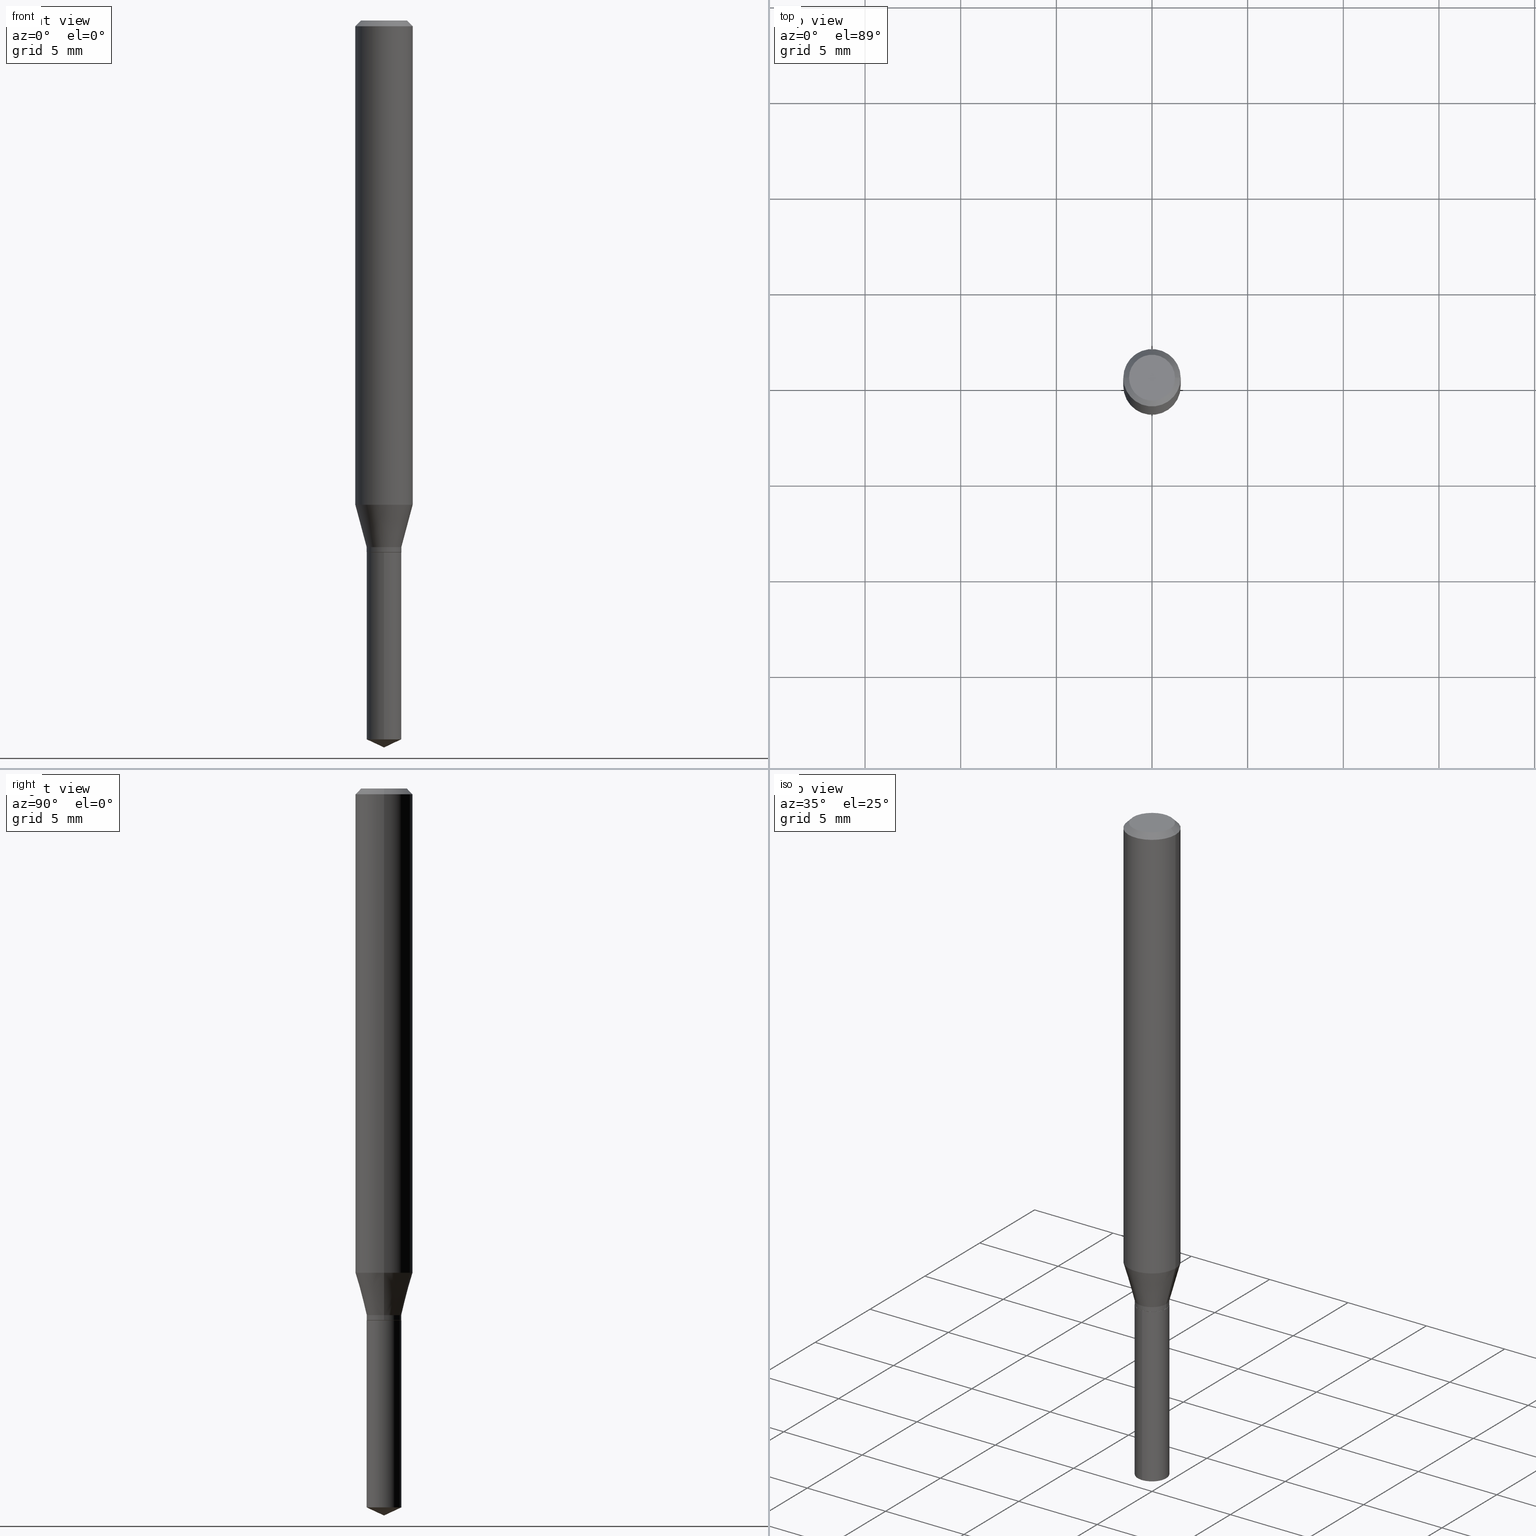
[diagram: canonical four-view strip — front | top / right | iso, engineering-drawing reading convention]
A machine part, canonical four-view strip (front | top / right | iso — engineering-drawing reading convention). The complete STEP part file that produces these views, byte-faithful:
ISO-10303-21;
HEADER;
FILE_DESCRIPTION (( 'STEP AP203' ),
    '1' );
FILE_NAME ('07922.STEP',
    '2024-04-24T06:16:55',
    ( '' ),
    ( '' ),
    'SwSTEP 2.0',
    'SolidWorks 2023',
    '' );
FILE_SCHEMA (( 'CONFIG_CONTROL_DESIGN' ));
ENDSEC;

DATA;
#1 = VERTEX_POINT ( 'NONE', #126 ) ;
#2 = CARTESIAN_POINT ( 'NONE',  ( 2.676565608369632355E-29, -3.821426325363822773E-15, -1.094500000000000028 ) ) ;
#3 = DIRECTION ( 'NONE',  ( 1.000000000000000000, -6.982962677686268288E-15, 0.000000000000000000 ) ) ;
#4 = ORIENTED_EDGE ( 'NONE', *, *, #178, .F. ) ;
#5 = COORDINATED_UNIVERSAL_TIME_OFFSET ( 5, 0, .BEHIND. ) ;
#6 = CARTESIAN_POINT ( 'NONE',  ( 2.650399092143451000E-29, -3.784067475038201019E-15, -1.083799999999999875 ) ) ;
#7 = APPLICATION_CONTEXT ( 'configuration controlled 3d designs of mechanical parts and assemblies' ) ;
#8 = EDGE_CURVE ( 'NONE', #236, #379, #198, .T. ) ;
#9 = ORIENTED_EDGE ( 'NONE', *, *, #467, .T. ) ;
#10 = CIRCLE ( 'NONE', #163, 0.03564999999999999419 ) ;
#11 = EDGE_CURVE ( 'NONE', #452, #465, #437, .T. ) ;
#12 = APPLICATION_PROTOCOL_DEFINITION ( 'international standard', 'config_control_design', 1994, #7 ) ;
#13 = ORIENTED_EDGE ( 'NONE', *, *, #36, .F. ) ;
#14 = PERSON_AND_ORGANIZATION ( #30, #106 ) ;
#15 = ORIENTED_EDGE ( 'NONE', *, *, #134, .T. ) ;
#16 = AXIS2_PLACEMENT_3D ( 'NONE', #40, #490, #147 ) ;
#17 = AXIS2_PLACEMENT_3D ( 'NONE', #108, #262, #261 ) ;
#18 = ORIENTED_EDGE ( 'NONE', *, *, #134, .F. ) ;
#19 = SHAPE_DEFINITION_REPRESENTATION ( #158, #78 ) ;
#20 = ORIENTED_EDGE ( 'NONE', *, *, #293, .T. ) ;
#21 = DIRECTION ( 'NONE',  ( 0.2588190451025213501, 1.565188264969621968E-15, 0.9659258262890682012 ) ) ;
#22 = VERTEX_POINT ( 'NONE', #357 ) ;
#23 = DIRECTION ( 'NONE',  ( 1.000000000000000000, -6.982962677686265133E-15, 0.000000000000000000 ) ) ;
#24 = CIRCLE ( 'NONE', #479, 0.05905000000000013016 ) ;
#25 = CARTESIAN_POINT ( 'NONE',  ( 2.888098660104663766E-31, -4.123439461173779647E-17, -0.01181000000000007044 ) ) ;
#26 = COORDINATED_UNIVERSAL_TIME_OFFSET ( 5, 0, .BEHIND. ) ;
#27 = CC_DESIGN_PERSON_AND_ORGANIZATION_ASSIGNMENT ( #200, #242, ( #419 ) ) ;
#28 = DIRECTION ( 'NONE',  ( -2.445468806185136597E-29, 3.491481338843145583E-15, 1.000000000000000000 ) ) ;
#29 = CYLINDRICAL_SURFACE ( 'NONE', #291, 0.03564999999999998725 ) ;
#30 = PERSON ( 'UNSPECIFIED', 'UNSPECIFIED', 'UNSPECIFIED', ('UNSPECIFIED'), ('UNSPECIFIED'), ('UNSPECIFIED') ) ;
#31 = DIRECTION ( 'NONE',  ( -0.7071067811864176766, 7.493145998869883999E-15, 0.7071067811866772468 ) ) ;
#32 = FACE_OUTER_BOUND ( 'NONE', #250, .T. ) ;
#33 = AXIS2_PLACEMENT_3D ( 'NONE', #267, #416, #280 ) ;
#34 = AXIS2_PLACEMENT_3D ( 'NONE', #62, #28, #259 ) ;
#35 = DIRECTION ( 'NONE',  ( -6.982962677686265922E-15, -1.000000000000000000, 3.831483862081715365E-15 ) ) ;
#36 = EDGE_CURVE ( 'NONE', #425, #162, #422, .T. ) ;
#37 = CARTESIAN_POINT ( 'NONE',  ( 3.658664905062460986E-29, -5.223606628546217219E-15, -1.496099999999999985 ) ) ;
#38 = EDGE_CURVE ( 'NONE', #1, #298, #24, .T. ) ;
#39 = DIRECTION ( 'NONE',  ( 6.439704144417031142E-15, 0.9063077870366522681, 0.4226182617406943343 ) ) ;
#40 = CARTESIAN_POINT ( 'NONE',  ( 2.676565608369632355E-29, -3.821426325363822773E-15, -1.094500000000000028 ) ) ;
#41 = AXIS2_PLACEMENT_3D ( 'NONE', #68, #73, #443 ) ;
#42 = CARTESIAN_POINT ( 'NONE',  ( 0.03515000000000000069, -4.066877463484495641E-15, -1.094500000000000028 ) ) ;
#43 = DIRECTION ( 'NONE',  ( -0.7071067811865453523, 2.468850131082234184E-15, -0.7071067811865496822 ) ) ;
#44 = CARTESIAN_POINT ( 'NONE',  ( -2.934360530474147503E-30, -8.074637746509678818E-15, -1.094500000000000028 ) ) ;
#45 = DIRECTION ( 'NONE',  ( 1.000000000000000000, -6.982962677686268288E-15, 0.000000000000000000 ) ) ;
#46 = ORIENTED_EDGE ( 'NONE', *, *, #309, .F. ) ;
#47 = ORIENTED_EDGE ( 'NONE', *, *, #65, .T. ) ;
#48 = PERSON_AND_ORGANIZATION ( #30, #106 ) ;
#49 = EDGE_CURVE ( 'NONE', #420, #92, #453, .T. ) ;
#50 = DATE_TIME_ROLE ( 'creation_date' ) ;
#51 = EDGE_LOOP ( 'NONE', ( #190, #202, #4, #229 ) ) ;
#52 = VECTOR ( 'NONE', #43, 39.37007874015748143 ) ;
#53 = ORIENTED_EDGE ( 'NONE', *, *, #235, .T. ) ;
#54 = DIRECTION ( 'NONE',  ( 1.000000000000000000, -6.982962677686266711E-15, 4.876185090822587894E-29 ) ) ;
#55 = ADVANCED_FACE ( 'NONE', ( #456 ), #446, .T. ) ;
#56 = DIRECTION ( 'NONE',  ( -6.982962677686265922E-15, -1.000000000000000000, 0.000000000000000000 ) ) ;
#57 = DATE_AND_TIME ( #132, #303 ) ;
#58 = CARTESIAN_POINT ( 'NONE',  ( -0.05905000000000006771, 4.195754854663396409E-16, -2.904631170795525045E-30 ) ) ;
#59 = EDGE_CURVE ( 'NONE', #298, #425, #183, .T. ) ;
#60 = DIRECTION ( 'NONE',  ( -2.445468806185136877E-29, 3.491481338843145188E-15, 1.000000000000000000 ) ) ;
#61 = DATE_AND_TIME ( #95, #345 ) ;
#62 = CARTESIAN_POINT ( 'NONE',  ( 8.265746106709734507E-48, -1.180129479067563789E-33, -3.380025165646692144E-19 ) ) ;
#63 = AXIS2_PLACEMENT_3D ( 'NONE', #44, #188, #103 ) ;
#64 = CARTESIAN_POINT ( 'NONE',  ( -0.03515000000000000069, -3.569021326570036253E-15, -1.094500000000000028 ) ) ;
#65 = EDGE_CURVE ( 'NONE', #379, #22, #375, .T. ) ;
#66 = LINE ( 'NONE', #213, #217 ) ;
#67 = CYLINDRICAL_SURFACE ( 'NONE', #480, 0.03565000000000000113 ) ;
#68 = CARTESIAN_POINT ( 'NONE',  ( 4.132873053354867254E-48, -5.900647395337818946E-34, -1.690012582823346072E-19 ) ) ;
#69 = VECTOR ( 'NONE', #445, 39.37007874015748143 ) ;
#70 = DIRECTION ( 'NONE',  ( -0.2588190451025213501, 5.211531920934551042E-15, 0.9659258262890682012 ) ) ;
#71 = CYLINDRICAL_SURFACE ( 'NONE', #86, 0.05905000000000006771 ) ;
#72 = LINE ( 'NONE', #110, #234 ) ;
#73 = DIRECTION ( 'NONE',  ( 2.438088387897960049E-29, -3.491481338843145188E-15, -1.000000000000000000 ) ) ;
#74 = VECTOR ( 'NONE', #340, 39.37007874015748143 ) ;
#75 = AXIS2_PLACEMENT_3D ( 'NONE', #2, #302, #426 ) ;
#76 = CARTESIAN_POINT ( 'NONE',  ( 0.05904999999999999832, -4.463468013801466955E-16, -0.01181000000000007044 ) ) ;
#77 = DIRECTION ( 'NONE',  ( -2.445468806185136597E-29, 3.491481338843145583E-15, 1.000000000000000000 ) ) ;
#78 = ADVANCED_BREP_SHAPE_REPRESENTATION ( '07922', ( #201, #371, #321 ), #472 ) ;
#79 = ORIENTED_EDGE ( 'NONE', *, *, #49, .F. ) ;
#80 = LENGTH_MEASURE_WITH_UNIT ( LENGTH_MEASURE( 0.02539999999999999897 ), #116 );
#81 = EDGE_CURVE ( 'NONE', #162, #425, #254, .T. ) ;
#82 = ORIENTED_EDGE ( 'NONE', *, *, #140, .T. ) ;
#83 = ORIENTED_EDGE ( 'NONE', *, *, #87, .F. ) ;
#84 = CIRCLE ( 'NONE', #268, 0.05905000000000013016 ) ;
#85 = DIRECTION ( 'NONE',  ( -2.445470214571802116E-29, 3.491479321953280158E-15, 1.000000000000000000 ) ) ;
#86 = AXIS2_PLACEMENT_3D ( 'NONE', #221, #367, #289 ) ;
#87 = EDGE_CURVE ( 'NONE', #236, #390, #72, .T. ) ;
#88 = ORIENTED_EDGE ( 'NONE', *, *, #218, .F. ) ;
#89 =( CONVERSION_BASED_UNIT ( 'INCH', #80 ) LENGTH_UNIT ( ) NAMED_UNIT ( #107 ) );
#90 = ORIENTED_EDGE ( 'NONE', *, *, #393, .T. ) ;
#91 = PRODUCT_RELATED_PRODUCT_CATEGORY ( 'detail', '', ( #419 ) ) ;
#92 = VERTEX_POINT ( 'NONE', #64 ) ;
#93 = CONICAL_SURFACE ( 'NONE', #177, 84.42940631927444883, 1.134464013796316451 ) ;
#94 = ORIENTED_EDGE ( 'NONE', *, *, #281, .T. ) ;
#95 = CALENDAR_DATE ( 2024, 24, 4 ) ;
#96 = DIRECTION ( 'NONE',  ( -2.445468806185136597E-29, 3.491481338843145583E-15, 1.000000000000000000 ) ) ;
#97 = APPLICATION_CONTEXT ( 'configuration controlled 3d designs of mechanical parts and assemblies' ) ;
#98 = CARTESIAN_POINT ( 'NONE',  ( -0.03564999999999998725, 2.533084852984756257E-16, -1.753600359675873274E-30 ) ) ;
#99 = DIRECTION ( 'NONE',  ( -2.445468806185136597E-29, 3.491481338843145583E-15, 1.000000000000000000 ) ) ;
#100 = DIRECTION ( 'NONE',  ( -2.445468806185136597E-29, 3.491481338843145583E-15, 1.000000000000000000 ) ) ;
#101 = AXIS2_PLACEMENT_3D ( 'NONE', #135, #77, #45 ) ;
#102 = CARTESIAN_POINT ( 'NONE',  ( 0.03564999999999998725, -4.033010094497716106E-15, -1.083799999999999875 ) ) ;
#103 = DIRECTION ( 'NONE',  ( 1.000000000000000000, -6.982962677686265922E-15, 4.876176775795935793E-29 ) ) ;
#104 = FACE_OUTER_BOUND ( 'NONE', #468, .T. ) ;
#105 = AXIS2_PLACEMENT_3D ( 'NONE', #317, #394, #56 ) ;
#106 = ORGANIZATION ( 'UNSPECIFIED', 'UNSPECIFIED', '' ) ;
#107 = DIMENSIONAL_EXPONENTS ( 1.000000000000000000, 0.000000000000000000, 0.000000000000000000, 0.000000000000000000, 0.000000000000000000, 0.000000000000000000, 0.000000000000000000 ) ;
#108 = CARTESIAN_POINT ( 'NONE',  ( 2.676565608369631794E-29, -3.821426325363822773E-15, -1.094499999999999806 ) ) ;
#109 = CARTESIAN_POINT ( 'NONE',  ( 2.533084852985119133E-16, 0.03564999999999483860, -1.479476131986774412 ) ) ;
#110 = CARTESIAN_POINT ( 'NONE',  ( -2.489426194594886595E-16, -0.03565000000000382446, -1.094499999999999806 ) ) ;
#111 = ORIENTED_EDGE ( 'NONE', *, *, #59, .F. ) ;
#112 = DIRECTION ( 'NONE',  ( -2.445468806185136877E-29, 3.491481338843145188E-15, 1.000000000000000000 ) ) ;
#113 = CIRCLE ( 'NONE', #33, 0.03564999999999998725 ) ;
#114 = CIRCLE ( 'NONE', #75, 0.03515000000000000069 ) ;
#115 = ADVANCED_FACE ( 'NONE', ( #360 ), #29, .T. ) ;
#116 =( LENGTH_UNIT ( ) NAMED_UNIT ( * ) SI_UNIT ( $, .METRE. ) );
#117 = CARTESIAN_POINT ( 'NONE',  ( 0.000000000000000000, 0.000000000000000000, 0.000000000000000000 ) ) ;
#118 = DATE_AND_TIME ( #194, #137 ) ;
#119 = CC_DESIGN_DATE_AND_TIME_ASSIGNMENT ( #429, #50, ( #424 ) ) ;
#120 = EDGE_LOOP ( 'NONE', ( #265, #197, #279 ) ) ;
#121 = AXIS2_PLACEMENT_3D ( 'NONE', #470, #96, #23 ) ;
#122 = PERSON_AND_ORGANIZATION_ROLE ( 'classification_officer' ) ;
#123 = ORIENTED_EDGE ( 'NONE', *, *, #38, .F. ) ;
#124 = APPROVAL_ROLE ( '' ) ;
#125 = ORIENTED_EDGE ( 'NONE', *, *, #36, .T. ) ;
#126 = CARTESIAN_POINT ( 'NONE',  ( -0.05905000000000013016, -3.059580963016214932E-15, -0.9964700111028879093 ) ) ;
#127 = FACE_OUTER_BOUND ( 'NONE', #51, .T. ) ;
#128 = ORIENTED_EDGE ( 'NONE', *, *, #428, .T. ) ;
#129 = FACE_OUTER_BOUND ( 'NONE', #120, .T. ) ;
#130 = ADVANCED_FACE ( 'NONE', ( #477 ), #312, .T. ) ;
#131 = ORIENTED_EDGE ( 'NONE', *, *, #218, .T. ) ;
#132 = CALENDAR_DATE ( 2024, 24, 4 ) ;
#133 = CARTESIAN_POINT ( 'NONE',  ( -0.04724000000000000421, 3.504923541997677355E-16, -3.380025165670481712E-19 ) ) ;
#134 = EDGE_CURVE ( 'NONE', #207, #162, #448, .T. ) ;
#135 = CARTESIAN_POINT ( 'NONE',  ( 2.650399092143451000E-29, -3.784067475038201019E-15, -1.083799999999999875 ) ) ;
#136 = CLOSED_SHELL ( 'NONE', ( #334, #258, #220, #462, #368 ) ) ;
#137 = LOCAL_TIME ( 2, 16, 55.00000000000000000, #388 ) ;
#138 = DIRECTION ( 'NONE',  ( -2.445468806185136597E-29, 3.491481338843145583E-15, 1.000000000000000000 ) ) ;
#139 = CARTESIAN_POINT ( 'NONE',  ( 2.676565608369632355E-29, -3.821426325363822773E-15, -1.094500000000000028 ) ) ;
#140 = EDGE_CURVE ( 'NONE', #452, #278, #144, .T. ) ;
#141 = LINE ( 'NONE', #76, #69 ) ;
#142 = ADVANCED_FACE ( 'NONE', ( #187 ), #176, .T. ) ;
#143 = CARTESIAN_POINT ( 'NONE',  ( 0.03564999999999998725, -2.489426194595153329E-16, 1.738357020571250421E-30 ) ) ;
#144 = CIRCLE ( 'NONE', #328, 0.03564999999999998725 ) ;
#145 = AXIS2_PLACEMENT_3D ( 'NONE', #211, #167, #431 ) ;
#146 = DIRECTION ( 'NONE',  ( 2.445470214571801836E-29, -3.491479321953280158E-15, -1.000000000000000000 ) ) ;
#147 = DIRECTION ( 'NONE',  ( 1.000000000000000000, -6.982962677686265133E-15, 0.000000000000000000 ) ) ;
#148 = FACE_OUTER_BOUND ( 'NONE', #310, .T. ) ;
#149 = CARTESIAN_POINT ( 'NONE',  ( -0.05904999999999999832, -1.340619936080806189E-15, -0.01181000000000007044 ) ) ;
#150 = ORIENTED_EDGE ( 'NONE', *, *, #281, .F. ) ;
#151 = CALENDAR_DATE ( 2024, 24, 4 ) ;
#152 = DIRECTION ( 'NONE',  ( 1.000000000000000000, -6.982962677686266711E-15, 4.876176775795935793E-29 ) ) ;
#153 = CC_DESIGN_SECURITY_CLASSIFICATION ( #364, ( #327 ) ) ;
#154 = AXIS2_PLACEMENT_3D ( 'NONE', #376, #180, #333 ) ;
#155 = APPROVAL_STATUS ( 'not_yet_approved' ) ;
#156 = ORIENTED_EDGE ( 'NONE', *, *, #38, .T. ) ;
#157 = COORDINATED_UNIVERSAL_TIME_OFFSET ( 5, 0, .BEHIND. ) ;
#158 = PRODUCT_DEFINITION_SHAPE ( 'NONE', 'NONE',  #424 ) ;
#159 = EDGE_LOOP ( 'NONE', ( #427, #164, #274, #301 ) ) ;
#160 = CARTESIAN_POINT ( 'NONE',  ( 0.000000000000000000, 0.000000000000000000, 0.000000000000000000 ) ) ;
#161 = CC_DESIGN_DATE_AND_TIME_ASSIGNMENT ( #61, #391, ( #364 ) ) ;
#162 = VERTEX_POINT ( 'NONE', #149 ) ;
#163 = AXIS2_PLACEMENT_3D ( 'NONE', #172, #325, #478 ) ;
#164 = ORIENTED_EDGE ( 'NONE', *, *, #322, .T. ) ;
#165 = ORIENTED_EDGE ( 'NONE', *, *, #361, .T. ) ;
#166 = EDGE_LOOP ( 'NONE', ( #433, #205, #15, #270 ) ) ;
#167 = DIRECTION ( 'NONE',  ( 2.445468806185136597E-29, -3.491481338843145583E-15, -1.000000000000000000 ) ) ;
#168 = LOCAL_TIME ( 2, 16, 55.00000000000000000, #5 ) ;
#169 = DIRECTION ( 'NONE',  ( 1.000000000000000000, -6.982962677686266711E-15, 0.000000000000000000 ) ) ;
#170 = FACE_OUTER_BOUND ( 'NONE', #243, .T. ) ;
#171 = CARTESIAN_POINT ( 'NONE',  ( 0.000000000000000000, 0.000000000000000000, 0.000000000000000000 ) ) ;
#172 = CARTESIAN_POINT ( 'NONE',  ( 3.618013272464351885E-29, -5.165562529641202202E-15, -1.479476131986774412 ) ) ;
#173 = CC_DESIGN_PERSON_AND_ORGANIZATION_ASSIGNMENT ( #48, #122, ( #364 ) ) ;
#174 = LOCAL_TIME ( 2, 16, 55.00000000000000000, #157 ) ;
#175 = CARTESIAN_POINT ( 'NONE',  ( 2.436836328451068965E-29, -3.479156448482555214E-15, -0.9964700111028879093 ) ) ;
#176 = CONICAL_SURFACE ( 'NONE', #244, 0.03564999999999998725, 0.2617993877991500740 ) ;
#177 = AXIS2_PLACEMENT_3D ( 'NONE', #363, #203, #249 ) ;
#178 = EDGE_CURVE ( 'NONE', #278, #452, #113, .T. ) ;
#179 = FACE_OUTER_BOUND ( 'NONE', #253, .T. ) ;
#180 = DIRECTION ( 'NONE',  ( -2.445468806185136597E-29, 3.491481338843145583E-15, 1.000000000000000000 ) ) ;
#181 = CARTESIAN_POINT ( 'NONE',  ( -0.03564999999999998725, -3.548565544567824927E-15, -1.083799999999999875 ) ) ;
#182 = EDGE_CURVE ( 'NONE', #192, #465, #365, .T. ) ;
#183 = LINE ( 'NONE', #411, #184 ) ;
#184 = VECTOR ( 'NONE', #228, 39.37007874015748143 ) ;
#185 = CONICAL_SURFACE ( 'NONE', #255, 0.03515000000000000069, 0.7853981633972647591 ) ;
#186 = DIRECTION ( 'NONE',  ( 0.7071067811864176766, -2.468850131080897064E-15, 0.7071067811866772468 ) ) ;
#187 = FACE_OUTER_BOUND ( 'NONE', #320, .T. ) ;
#188 = DIRECTION ( 'NONE',  ( -2.438088387897960049E-29, 3.491481338843145188E-15, 1.000000000000000000 ) ) ;
#189 = DIRECTION ( 'NONE',  ( -2.445468806185136597E-29, 3.491481338843145583E-15, 1.000000000000000000 ) ) ;
#190 = ORIENTED_EDGE ( 'NONE', *, *, #49, .T. ) ;
#191 = CALENDAR_DATE ( 2024, 24, 4 ) ;
#192 = VERTEX_POINT ( 'NONE', #102 ) ;
#193 = COORDINATED_UNIVERSAL_TIME_OFFSET ( 5, 0, .BEHIND. ) ;
#194 = CALENDAR_DATE ( 2024, 24, 4 ) ;
#195 = EDGE_LOOP ( 'NONE', ( #473, #346, #125, #18 ) ) ;
#196 = APPROVAL_STATUS ( 'not_yet_approved' ) ;
#197 = ORIENTED_EDGE ( 'NONE', *, *, #464, .T. ) ;
#198 = CIRCLE ( 'NONE', #105, 0.03564999999999999419 ) ;
#199 = CIRCLE ( 'NONE', #305, 0.04724000000000000421 ) ;
#200 = PERSON_AND_ORGANIZATION ( #30, #106 ) ;
#201 = MANIFOLD_SOLID_BREP ( 'Body-Move/Copy2[1]', #136 ) ;
#202 = ORIENTED_EDGE ( 'NONE', *, *, #318, .T. ) ;
#203 = DIRECTION ( 'NONE',  ( -2.445470214571802116E-29, 3.491479321953280158E-15, 1.000000000000000000 ) ) ;
#204 = APPROVAL ( #155, 'UNSPECIFIED' ) ;
#205 = ORIENTED_EDGE ( 'NONE', *, *, #293, .F. ) ;
#206 = DIRECTION ( 'NONE',  ( -2.445468806185136597E-29, 3.491481338843145583E-15, 1.000000000000000000 ) ) ;
#207 = VERTEX_POINT ( 'NONE', #133 ) ;
#208 = ADVANCED_FACE ( 'NONE', ( #127 ), #463, .T. ) ;
#209 = APPROVAL_STATUS ( 'not_yet_approved' ) ;
#210 = AXIS2_PLACEMENT_3D ( 'NONE', #266, #146, #369 ) ;
#211 = CARTESIAN_POINT ( 'NONE',  ( 2.888098660104663766E-31, -4.123439461173779647E-17, -0.01181000000000007044 ) ) ;
#212 = APPROVAL_ROLE ( '' ) ;
#213 = CARTESIAN_POINT ( 'NONE',  ( -0.03515000000000000069, -3.571670553744147454E-15, -1.094500000000000028 ) ) ;
#214 = DIRECTION ( 'NONE',  ( 1.000000000000000000, -6.982962677686265133E-15, 0.000000000000000000 ) ) ;
#215 = DIRECTION ( 'NONE',  ( -2.445470214571802116E-29, 3.491479321953280158E-15, 1.000000000000000000 ) ) ;
#216 = LINE ( 'NONE', #143, #344 ) ;
#217 = VECTOR ( 'NONE', #31, 39.37007874015748854 ) ;
#218 = EDGE_CURVE ( 'NONE', #298, #1, #84, .T. ) ;
#219 = CARTESIAN_POINT ( 'NONE',  ( 0.05904999999999999832, -4.535783407291118600E-16, -0.01181000000000007044 ) ) ;
#220 = ADVANCED_FACE ( 'NONE', ( #436 ), #358, .T. ) ;
#221 = CARTESIAN_POINT ( 'NONE',  ( 0.000000000000000000, 0.000000000000000000, 0.000000000000000000 ) ) ;
#222 = DIRECTION ( 'NONE',  ( -2.445470214571802396E-29, 3.491479321953280158E-15, 1.000000000000000000 ) ) ;
#223 = FACE_OUTER_BOUND ( 'NONE', #195, .T. ) ;
#224 = DIRECTION ( 'NONE',  ( -2.445468806185136597E-29, 3.491481338843145583E-15, 1.000000000000000000 ) ) ;
#225 = VECTOR ( 'NONE', #39, 39.37007874015748143 ) ;
#226 = ORIENTED_EDGE ( 'NONE', *, *, #322, .F. ) ;
#227 = CARTESIAN_POINT ( 'NONE',  ( 2.676565608369631794E-29, -3.821426325363822773E-15, -1.094499999999999806 ) ) ;
#228 = DIRECTION ( 'NONE',  ( -2.445468806185136877E-29, 3.491481338843145188E-15, 1.000000000000000000 ) ) ;
#229 = ORIENTED_EDGE ( 'NONE', *, *, #467, .F. ) ;
#230 = PERSON_AND_ORGANIZATION ( #30, #106 ) ;
#231 = ADVANCED_FACE ( 'NONE', ( #277 ), #389, .T. ) ;
#232 = ORIENTED_EDGE ( 'NONE', *, *, #464, .F. ) ;
#233 = APPROVAL_DATE_TIME ( #118, #204 ) ;
#234 = VECTOR ( 'NONE', #222, 39.37007874015748143 ) ;
#235 = EDGE_CURVE ( 'NONE', #308, #207, #199, .T. ) ;
#236 = VERTEX_POINT ( 'NONE', #319 ) ;
#237 = CC_DESIGN_APPROVAL ( #252, ( #424 ) ) ;
#238 = DATE_AND_TIME ( #151, #168 ) ;
#239 = ORIENTED_EDGE ( 'NONE', *, *, #341, .T. ) ;
#240 =( NAMED_UNIT ( * ) PLANE_ANGLE_UNIT ( ) SI_UNIT ( $, .RADIAN. ) );
#241 = ORIENTED_EDGE ( 'NONE', *, *, #318, .F. ) ;
#242 = PERSON_AND_ORGANIZATION_ROLE ( 'design_owner' ) ;
#243 = EDGE_LOOP ( 'NONE', ( #131, #94, #13, #111 ) ) ;
#244 = AXIS2_PLACEMENT_3D ( 'NONE', #6, #439, #3 ) ;
#245 = AXIS2_PLACEMENT_3D ( 'NONE', #227, #342, #35 ) ;
#246 = APPROVAL_PERSON_ORGANIZATION ( #395, #297, #212 ) ;
#247 = DIRECTION ( 'NONE',  ( 1.000000000000000000, -6.982962677686265133E-15, 0.000000000000000000 ) ) ;
#248 = ORIENTED_EDGE ( 'NONE', *, *, #393, .F. ) ;
#249 = DIRECTION ( 'NONE',  ( -6.982962677686266711E-15, -1.000000000000000000, 3.520397390770449137E-15 ) ) ;
#250 = EDGE_LOOP ( 'NONE', ( #316, #47, #435, #83 ) ) ;
#251 = CARTESIAN_POINT ( 'NONE',  ( 0.03564999999999998725, -4.068623204153916356E-15, -1.093999999999999861 ) ) ;
#252 = APPROVAL ( #196, 'UNSPECIFIED' ) ;
#253 = EDGE_LOOP ( 'NONE', ( #79, #349 ) ) ;
#254 = CIRCLE ( 'NONE', #486, 0.05904999999999999832 ) ;
#255 = AXIS2_PLACEMENT_3D ( 'NONE', #139, #299, #450 ) ;
#256 = CARTESIAN_POINT ( 'NONE',  ( 3.658667988020872822E-29, -5.223602213574301462E-15, -1.496099999999999985 ) ) ;
#257 = DIRECTION ( 'NONE',  ( 1.000000000000000000, -6.982962677686266711E-15, 0.000000000000000000 ) ) ;
#258 = ADVANCED_FACE ( 'NONE', ( #129 ), #93, .T. ) ;
#259 = DIRECTION ( 'NONE',  ( 1.000000000000000000, -6.982962677686266711E-15, 4.876185090822587894E-29 ) ) ;
#260 = CARTESIAN_POINT ( 'NONE',  ( 0.03515000000000000069, -4.066877463484495641E-15, -1.094500000000000028 ) ) ;
#261 = DIRECTION ( 'NONE',  ( -6.982962677686265922E-15, -1.000000000000000000, 3.831483862081715365E-15 ) ) ;
#262 = DIRECTION ( 'NONE',  ( -2.445470214571802116E-29, 3.491479321953280158E-15, 1.000000000000000000 ) ) ;
#263 = LINE ( 'NONE', #414, #294 ) ;
#264 = CARTESIAN_POINT ( 'NONE',  ( -0.05904999999999999832, 3.711095515056362547E-16, -0.01181000000000007044 ) ) ;
#265 = ORIENTED_EDGE ( 'NONE', *, *, #428, .F. ) ;
#266 = CARTESIAN_POINT ( 'NONE',  ( 2.676565608369631794E-29, -3.821426325363822773E-15, -1.094499999999999806 ) ) ;
#267 = CARTESIAN_POINT ( 'NONE',  ( 2.675342873966538993E-29, -3.819680584694400481E-15, -1.093999999999999861 ) ) ;
#268 = AXIS2_PLACEMENT_3D ( 'NONE', #175, #474, #247 ) ;
#269 = CARTESIAN_POINT ( 'NONE',  ( 2.533084852985024470E-16, 0.03564999999999617780, -1.094500000000000028 ) ) ;
#270 = ORIENTED_EDGE ( 'NONE', *, *, #81, .T. ) ;
#271 = SECURITY_CLASSIFICATION_LEVEL ( 'unclassified' ) ;
#272 = APPLICATION_PROTOCOL_DEFINITION ( 'international standard', 'config_control_design', 1994, #97 ) ;
#273 = DIRECTION ( 'NONE',  ( 1.000000000000000000, 0.000000000000000000, 0.000000000000000000 ) ) ;
#274 = ORIENTED_EDGE ( 'NONE', *, *, #87, .T. ) ;
#275 = PERSON_AND_ORGANIZATION_ROLE ( 'creator' ) ;
#276 = ORIENTED_EDGE ( 'NONE', *, *, #11, .T. ) ;
#277 = FACE_OUTER_BOUND ( 'NONE', #166, .T. ) ;
#278 = VERTEX_POINT ( 'NONE', #251 ) ;
#279 = ORIENTED_EDGE ( 'NONE', *, *, #8, .F. ) ;
#280 = DIRECTION ( 'NONE',  ( 1.000000000000000000, -6.982962677686268288E-15, 0.000000000000000000 ) ) ;
#281 = EDGE_CURVE ( 'NONE', #1, #162, #396, .T. ) ;
#282 = EDGE_LOOP ( 'NONE', ( #460, #276, #338, #353 ) ) ;
#283 = APPROVAL_DATE_TIME ( #57, #297 ) ;
#284 = DIRECTION ( 'NONE',  ( 1.000000000000000000, -6.982962677686268288E-15, 0.000000000000000000 ) ) ;
#285 = DIRECTION ( 'NONE',  ( 1.000000000000000000, -6.982962677686268288E-15, 0.000000000000000000 ) ) ;
#286 = AXIS2_PLACEMENT_3D ( 'NONE', #117, #224, #152 ) ;
#287 = VECTOR ( 'NONE', #186, 39.37007874015748854 ) ;
#288 = DIRECTION ( 'NONE',  ( -6.982962677686265922E-15, -1.000000000000000000, 3.831483862081715365E-15 ) ) ;
#289 = DIRECTION ( 'NONE',  ( 1.000000000000000000, -6.982962677686266711E-15, 4.876176775795936353E-29 ) ) ;
#290 = DIRECTION ( 'NONE',  ( -1.000000000000000000, 6.982962677686266711E-15, 0.000000000000000000 ) ) ;
#291 = AXIS2_PLACEMENT_3D ( 'NONE', #171, #337, #296 ) ;
#292 = FACE_OUTER_BOUND ( 'NONE', #307, .T. ) ;
#293 = EDGE_CURVE ( 'NONE', #207, #308, #444, .T. ) ;
#294 = VECTOR ( 'NONE', #70, 39.37007874015747433 ) ;
#295 = LINE ( 'NONE', #37, #336 ) ;
#296 = DIRECTION ( 'NONE',  ( 1.000000000000000000, -6.982962677686266711E-15, 4.876176775795935793E-29 ) ) ;
#297 = APPROVAL ( #209, 'UNSPECIFIED' ) ;
#298 = VERTEX_POINT ( 'NONE', #324 ) ;
#299 = DIRECTION ( 'NONE',  ( -2.445468806185136597E-29, 3.491481338843145583E-15, 1.000000000000000000 ) ) ;
#300 = ADVANCED_FACE ( 'NONE', ( #170 ), #476, .T. ) ;
#301 = ORIENTED_EDGE ( 'NONE', *, *, #485, .F. ) ;
#302 = DIRECTION ( 'NONE',  ( -2.445468806185136597E-29, 3.491481338843145583E-15, 1.000000000000000000 ) ) ;
#303 = LOCAL_TIME ( 2, 16, 55.00000000000000000, #26 ) ;
#304 = AXIS2_PLACEMENT_3D ( 'NONE', #481, #206, #284 ) ;
#305 = AXIS2_PLACEMENT_3D ( 'NONE', #359, #434, #54 ) ;
#306 = CC_DESIGN_APPROVAL ( #204, ( #327 ) ) ;
#307 = EDGE_LOOP ( 'NONE', ( #20, #53 ) ) ;
#308 = VERTEX_POINT ( 'NONE', #354 ) ;
#309 = EDGE_CURVE ( 'NONE', #192, #298, #362, .T. ) ;
#310 = EDGE_LOOP ( 'NONE', ( #241, #400, #9, #469 ) ) ;
#311 = PERSON_AND_ORGANIZATION_ROLE ( 'design_supplier' ) ;
#312 = CONICAL_SURFACE ( 'NONE', #101, 0.03564999999999998725, 0.2617993877991500740 ) ;
#313 = VECTOR ( 'NONE', #21, 39.37007874015747433 ) ;
#314 = VERTEX_POINT ( 'NONE', #256 ) ;
#315 = APPROVAL_ROLE ( '' ) ;
#316 = ORIENTED_EDGE ( 'NONE', *, *, #8, .T. ) ;
#317 = CARTESIAN_POINT ( 'NONE',  ( 3.618013272464351885E-29, -5.165562529641202202E-15, -1.479476131986774412 ) ) ;
#318 = EDGE_CURVE ( 'NONE', #92, #452, #66, .T. ) ;
#319 = CARTESIAN_POINT ( 'NONE',  ( -2.489426194594792425E-16, -0.03565000000000517755, -1.479476131986774412 ) ) ;
#320 = EDGE_LOOP ( 'NONE', ( #248, #239, #343, #123 ) ) ;
#321 = AXIS2_PLACEMENT_3D ( 'NONE', #160, #418, #273 ) ;
#322 = EDGE_CURVE ( 'NONE', #379, #236, #10, .T. ) ;
#323 = CARTESIAN_POINT ( 'NONE',  ( 2.436836328451068965E-29, -3.479156448482555214E-15, -0.9964700111028879093 ) ) ;
#324 = CARTESIAN_POINT ( 'NONE',  ( 0.05905000000000013016, -3.891500394599930134E-15, -0.9964700111028879093 ) ) ;
#325 = DIRECTION ( 'NONE',  ( -2.445470214571802116E-29, 3.491479321953280158E-15, 1.000000000000000000 ) ) ;
#326 = CARTESIAN_POINT ( 'NONE',  ( 2.888098660104663766E-31, -4.123439461173779647E-17, -0.01181000000000007044 ) ) ;
#327 = PRODUCT_DEFINITION_FORMATION_WITH_SPECIFIED_SOURCE ( 'ANY', '', #419, .NOT_KNOWN. ) ;
#328 = AXIS2_PLACEMENT_3D ( 'NONE', #451, #189, #285 ) ;
#329 = AXIS2_PLACEMENT_3D ( 'NONE', #356, #330, #392 ) ;
#330 = DIRECTION ( 'NONE',  ( -2.445470214571802116E-29, 3.491479321953280158E-15, 1.000000000000000000 ) ) ;
#331 = DESIGN_CONTEXT ( 'detailed design', #7, 'design' ) ;
#332 = DIRECTION ( 'NONE',  ( 2.445468806185136597E-29, -3.491481338843145583E-15, -1.000000000000000000 ) ) ;
#333 = DIRECTION ( 'NONE',  ( 1.000000000000000000, -6.982962677686268288E-15, 0.000000000000000000 ) ) ;
#334 = ADVANCED_FACE ( 'NONE', ( #32 ), #67, .T. ) ;
#335 = LINE ( 'NONE', #42, #287 ) ;
#336 = VECTOR ( 'NONE', #372, 39.37007874015748143 ) ;
#337 = DIRECTION ( 'NONE',  ( -2.445468806185136597E-29, 3.491481338843145583E-15, 1.000000000000000000 ) ) ;
#338 = ORIENTED_EDGE ( 'NONE', *, *, #182, .F. ) ;
#339 = CYLINDRICAL_SURFACE ( 'NONE', #17, 0.03565000000000000113 ) ;
#340 = DIRECTION ( 'NONE',  ( -2.445470214571802396E-29, 3.491479321953280158E-15, 1.000000000000000000 ) ) ;
#341 = EDGE_CURVE ( 'NONE', #465, #192, #455, .T. ) ;
#342 = DIRECTION ( 'NONE',  ( -2.445470214571802116E-29, 3.491479321953280158E-15, 1.000000000000000000 ) ) ;
#343 = ORIENTED_EDGE ( 'NONE', *, *, #309, .T. ) ;
#344 = VECTOR ( 'NONE', #112, 39.37007874015748143 ) ;
#345 = LOCAL_TIME ( 2, 16, 55.00000000000000000, #193 ) ;
#346 = ORIENTED_EDGE ( 'NONE', *, *, #397, .T. ) ;
#347 = ADVANCED_FACE ( 'NONE', ( #148 ), #185, .T. ) ;
#348 = PERSON_AND_ORGANIZATION ( #30, #106 ) ;
#349 = ORIENTED_EDGE ( 'NONE', *, *, #482, .F. ) ;
#350 = MECHANICAL_CONTEXT ( 'NONE', #97, 'mechanical' ) ;
#351 = AXIS2_PLACEMENT_3D ( 'NONE', #458, #85, #461 ) ;
#352 = ORIENTED_EDGE ( 'NONE', *, *, #59, .T. ) ;
#353 = ORIENTED_EDGE ( 'NONE', *, *, #361, .F. ) ;
#354 = CARTESIAN_POINT ( 'NONE',  ( 0.04724000000000000421, -3.852183633974369345E-16, -3.380025165621689721E-19 ) ) ;
#355 = ORIENTED_EDGE ( 'NONE', *, *, #485, .T. ) ;
#356 = CARTESIAN_POINT ( 'NONE',  ( -9.261968845786000133E-28, 1.322362114038720264E-13, 37.87397874015748300 ) ) ;
#357 = CARTESIAN_POINT ( 'NONE',  ( 2.533084852985119133E-16, 0.03564999999999618474, -1.094500000000000028 ) ) ;
#358 = CONICAL_SURFACE ( 'NONE', #329, 84.42940631927444883, 1.134464013796316451 ) ;
#359 = CARTESIAN_POINT ( 'NONE',  ( 8.265746106709734507E-48, -1.180129479067563789E-33, -3.380025165646692144E-19 ) ) ;
#360 = FACE_OUTER_BOUND ( 'NONE', #282, .T. ) ;
#361 = EDGE_CURVE ( 'NONE', #278, #192, #216, .T. ) ;
#362 = LINE ( 'NONE', #403, #313 ) ;
#363 = CARTESIAN_POINT ( 'NONE',  ( -9.261968845786000133E-28, 1.322362114038720264E-13, 37.87397874015748300 ) ) ;
#364 = SECURITY_CLASSIFICATION ( '', '', #271 ) ;
#365 = CIRCLE ( 'NONE', #304, 0.03564999999999998725 ) ;
#366 = AXIS2_PLACEMENT_3D ( 'NONE', #438, #100, #440 ) ;
#367 = DIRECTION ( 'NONE',  ( -2.445468806185136597E-29, 3.491481338843145583E-15, 1.000000000000000000 ) ) ;
#368 = ADVANCED_FACE ( 'NONE', ( #442 ), #483, .F. ) ;
#369 = DIRECTION ( 'NONE',  ( 6.982962677686265922E-15, 1.000000000000000000, -3.491479321953280158E-15 ) ) ;
#370 = EDGE_CURVE ( 'NONE', #390, #22, #432, .T. ) ;
#371 = MANIFOLD_SOLID_BREP ( 'Body-Move/Copy2[2]', #471 ) ;
#372 = DIRECTION ( 'NONE',  ( -6.328713451373376478E-15, -0.9063077870366493816, 0.4226182617407006070 ) ) ;
#373 = CC_DESIGN_PERSON_AND_ORGANIZATION_ASSIGNMENT ( #14, #275, ( #327 ) ) ;
#374 = FACE_OUTER_BOUND ( 'NONE', #159, .T. ) ;
#375 = LINE ( 'NONE', #269, #74 ) ;
#376 = CARTESIAN_POINT ( 'NONE',  ( 2.650399092143451000E-29, -3.784067475038201019E-15, -1.083799999999999875 ) ) ;
#377 = EDGE_LOOP ( 'NONE', ( #398, #355 ) ) ;
#378 = PERSON_AND_ORGANIZATION_ROLE ( 'creator' ) ;
#379 = VERTEX_POINT ( 'NONE', #109 ) ;
#380 = PERSON_AND_ORGANIZATION ( #30, #106 ) ;
#381 = VECTOR ( 'NONE', #60, 39.37007874015748143 ) ;
#382 = APPROVAL_PERSON_ORGANIZATION ( #230, #252, #315 ) ;
#383 = CC_DESIGN_PERSON_AND_ORGANIZATION_ASSIGNMENT ( #348, #378, ( #424 ) ) ;
#384 = ORIENTED_EDGE ( 'NONE', *, *, #11, .F. ) ;
#385 = APPROVAL_DATE_TIME ( #238, #252 ) ;
#386 = CC_DESIGN_PERSON_AND_ORGANIZATION_ASSIGNMENT ( #380, #311, ( #327 ) ) ;
#387 = EDGE_LOOP ( 'NONE', ( #430, #90, #88, #46 ) ) ;
#388 = COORDINATED_UNIVERSAL_TIME_OFFSET ( 5, 0, .BEHIND. ) ;
#389 = CONICAL_SURFACE ( 'NONE', #145, 0.05904999999999999832, 0.7853981633974452814 ) ;
#390 = VERTEX_POINT ( 'NONE', #447 ) ;
#391 = DATE_TIME_ROLE ( 'classification_date' ) ;
#392 = DIRECTION ( 'NONE',  ( -6.982962677686266711E-15, -1.000000000000000000, 3.520397390770449137E-15 ) ) ;
#393 = EDGE_CURVE ( 'NONE', #465, #1, #263, .T. ) ;
#394 = DIRECTION ( 'NONE',  ( -2.445470214571802116E-29, 3.491479321953280158E-15, 1.000000000000000000 ) ) ;
#395 = PERSON_AND_ORGANIZATION ( #30, #106 ) ;
#396 = LINE ( 'NONE', #58, #423 ) ;
#397 = EDGE_CURVE ( 'NONE', #308, #425, #141, .T. ) ;
#398 = ORIENTED_EDGE ( 'NONE', *, *, #370, .T. ) ;
#399 = DIRECTION ( 'NONE',  ( -2.445468806185136877E-29, 3.491481338843145188E-15, 1.000000000000000000 ) ) ;
#400 = ORIENTED_EDGE ( 'NONE', *, *, #482, .T. ) ;
#401 = AXIS2_PLACEMENT_3D ( 'NONE', #406, #332, #290 ) ;
#402 = ADVANCED_FACE ( 'NONE', ( #104 ), #71, .T. ) ;
#403 = CARTESIAN_POINT ( 'NONE',  ( 0.03564999999999998725, -4.033010094497716106E-15, -1.083799999999999875 ) ) ;
#404 = CARTESIAN_POINT ( 'NONE',  ( 2.676565608369631794E-29, -3.821426325363822773E-15, -1.094499999999999806 ) ) ;
#405 = UNCERTAINTY_MEASURE_WITH_UNIT (LENGTH_MEASURE( 1.000000000000000082E-05 ), #89, 'distance_accuracy_value', 'NONE');
#406 = CARTESIAN_POINT ( 'NONE',  ( 2.888098660104663766E-31, -4.123439461173779647E-17, -0.01181000000000007044 ) ) ;
#407 = CIRCLE ( 'NONE', #351, 0.03565000000000000113 ) ;
#408 = LINE ( 'NONE', #410, #225 ) ;
#409 = ADVANCED_FACE ( 'NONE', ( #179 ), #489, .F. ) ;
#410 = CARTESIAN_POINT ( 'NONE',  ( 3.658668015054778287E-29, -5.223602213574301462E-15, -1.496099999999999985 ) ) ;
#411 = CARTESIAN_POINT ( 'NONE',  ( 0.05905000000000006771, -4.123439461173745257E-16, 2.879382386107503723E-30 ) ) ;
#412 = PLANE ( 'NONE',  #41 ) ;
#413 = AXIS2_PLACEMENT_3D ( 'NONE', #25, #99, #169 ) ;
#414 = CARTESIAN_POINT ( 'NONE',  ( -0.03564999999999998725, -3.530758989739725196E-15, -1.083799999999999875 ) ) ;
#415 = CC_DESIGN_APPROVAL ( #297, ( #364 ) ) ;
#416 = DIRECTION ( 'NONE',  ( -2.445468806185136597E-29, 3.491481338843145583E-15, 1.000000000000000000 ) ) ;
#417 = ORIENTED_EDGE ( 'NONE', *, *, #341, .F. ) ;
#418 = DIRECTION ( 'NONE',  ( 0.000000000000000000, 0.000000000000000000, 1.000000000000000000 ) ) ;
#419 = PRODUCT ( '07922', '07922', '', ( #350 ) ) ;
#420 = VERTEX_POINT ( 'NONE', #260 ) ;
#421 = EDGE_LOOP ( 'NONE', ( #384, #82, #165, #417 ) ) ;
#422 = CIRCLE ( 'NONE', #413, 0.05904999999999999832 ) ;
#423 = VECTOR ( 'NONE', #399, 39.37007874015748143 ) ;
#424 = PRODUCT_DEFINITION ( 'UNKNOWN', '', #327, #331 ) ;
#425 = VERTEX_POINT ( 'NONE', #219 ) ;
#426 = DIRECTION ( 'NONE',  ( 1.000000000000000000, -6.982962677686265133E-15, 0.000000000000000000 ) ) ;
#427 = ORIENTED_EDGE ( 'NONE', *, *, #65, .F. ) ;
#428 = EDGE_CURVE ( 'NONE', #314, #236, #295, .T. ) ;
#429 = DATE_AND_TIME ( #191, #174 ) ;
#430 = ORIENTED_EDGE ( 'NONE', *, *, #182, .T. ) ;
#431 = DIRECTION ( 'NONE',  ( -1.000000000000000000, 6.982962677686266711E-15, 0.000000000000000000 ) ) ;
#432 = CIRCLE ( 'NONE', #245, 0.03565000000000000113 ) ;
#433 = ORIENTED_EDGE ( 'NONE', *, *, #397, .F. ) ;
#434 = DIRECTION ( 'NONE',  ( -2.445468806185136597E-29, 3.491481338843145583E-15, 1.000000000000000000 ) ) ;
#435 = ORIENTED_EDGE ( 'NONE', *, *, #370, .F. ) ;
#436 = FACE_OUTER_BOUND ( 'NONE', #449, .T. ) ;
#437 = LINE ( 'NONE', #98, #381 ) ;
#438 = CARTESIAN_POINT ( 'NONE',  ( 0.000000000000000000, 0.000000000000000000, 0.000000000000000000 ) ) ;
#439 = DIRECTION ( 'NONE',  ( -2.445468806185136597E-29, 3.491481338843145583E-15, 1.000000000000000000 ) ) ;
#440 = DIRECTION ( 'NONE',  ( 1.000000000000000000, -6.982962677686266711E-15, 4.876176775795936353E-29 ) ) ;
#441 = ADVANCED_FACE ( 'NONE', ( #223 ), #487, .T. ) ;
#442 = FACE_OUTER_BOUND ( 'NONE', #377, .T. ) ;
#443 = DIRECTION ( 'NONE',  ( -1.000000000000000000, 6.982962677686265922E-15, -4.876176775795935793E-29 ) ) ;
#444 = CIRCLE ( 'NONE', #34, 0.04724000000000000421 ) ;
#445 = DIRECTION ( 'NONE',  ( 0.7071067811865453523, -7.319954787623248157E-15, -0.7071067811865496822 ) ) ;
#446 = CYLINDRICAL_SURFACE ( 'NONE', #286, 0.03564999999999998725 ) ;
#447 = CARTESIAN_POINT ( 'NONE',  ( -2.489426194594886595E-16, -0.03565000000000382446, -1.094499999999999806 ) ) ;
#448 = LINE ( 'NONE', #264, #52 ) ;
#449 = EDGE_LOOP ( 'NONE', ( #232, #128, #226 ) ) ;
#450 = DIRECTION ( 'NONE',  ( 1.000000000000000000, -6.982962677686265133E-15, 0.000000000000000000 ) ) ;
#451 = CARTESIAN_POINT ( 'NONE',  ( 2.675342873966538993E-29, -3.819680584694400481E-15, -1.093999999999999861 ) ) ;
#452 = VERTEX_POINT ( 'NONE', #484 ) ;
#453 = CIRCLE ( 'NONE', #16, 0.03515000000000000069 ) ;
#454 =( NAMED_UNIT ( * ) SI_UNIT ( $, .STERADIAN. ) SOLID_ANGLE_UNIT ( ) );
#455 = CIRCLE ( 'NONE', #154, 0.03564999999999998725 ) ;
#456 = FACE_OUTER_BOUND ( 'NONE', #421, .T. ) ;
#457 = ORIENTED_EDGE ( 'NONE', *, *, #81, .F. ) ;
#458 = CARTESIAN_POINT ( 'NONE',  ( 2.676565608369631794E-29, -3.821426325363822773E-15, -1.094499999999999806 ) ) ;
#459 = ADVANCED_FACE ( 'NONE', ( #292 ), #412, .F. ) ;
#460 = ORIENTED_EDGE ( 'NONE', *, *, #178, .T. ) ;
#461 = DIRECTION ( 'NONE',  ( -6.982962677686265922E-15, -1.000000000000000000, 3.831483862081715365E-15 ) ) ;
#462 = ADVANCED_FACE ( 'NONE', ( #374 ), #339, .T. ) ;
#463 = CONICAL_SURFACE ( 'NONE', #121, 0.03515000000000000069, 0.7853981633972647591 ) ;
#464 = EDGE_CURVE ( 'NONE', #314, #379, #408, .T. ) ;
#465 = VERTEX_POINT ( 'NONE', #181 ) ;
#466 = PERSON_AND_ORGANIZATION ( #30, #106 ) ;
#467 = EDGE_CURVE ( 'NONE', #420, #278, #335, .T. ) ;
#468 = EDGE_LOOP ( 'NONE', ( #150, #156, #352, #457 ) ) ;
#469 = ORIENTED_EDGE ( 'NONE', *, *, #140, .F. ) ;
#470 = CARTESIAN_POINT ( 'NONE',  ( 2.676565608369632355E-29, -3.821426325363822773E-15, -1.094500000000000028 ) ) ;
#471 = CLOSED_SHELL ( 'NONE', ( #208, #441, #300, #130, #115, #55, #142, #402, #231, #459, #409, #347 ) ) ;
#472 =( GEOMETRIC_REPRESENTATION_CONTEXT ( 3 ) GLOBAL_UNCERTAINTY_ASSIGNED_CONTEXT ( ( #405 ) ) GLOBAL_UNIT_ASSIGNED_CONTEXT ( ( #89, #240, #454 ) ) REPRESENTATION_CONTEXT ( 'NONE', 'WORKASPACE' ) );
#473 = ORIENTED_EDGE ( 'NONE', *, *, #235, .F. ) ;
#474 = DIRECTION ( 'NONE',  ( -2.445468806185136597E-29, 3.491481338843145583E-15, 1.000000000000000000 ) ) ;
#475 = DIRECTION ( 'NONE',  ( -2.445468806185136597E-29, 3.491481338843145583E-15, 1.000000000000000000 ) ) ;
#476 = CYLINDRICAL_SURFACE ( 'NONE', #366, 0.05905000000000006771 ) ;
#477 = FACE_OUTER_BOUND ( 'NONE', #387, .T. ) ;
#478 = DIRECTION ( 'NONE',  ( -6.982962677686265922E-15, -1.000000000000000000, 0.000000000000000000 ) ) ;
#479 = AXIS2_PLACEMENT_3D ( 'NONE', #323, #475, #214 ) ;
#480 = AXIS2_PLACEMENT_3D ( 'NONE', #404, #215, #288 ) ;
#481 = CARTESIAN_POINT ( 'NONE',  ( 2.650399092143451000E-29, -3.784067475038201019E-15, -1.083799999999999875 ) ) ;
#482 = EDGE_CURVE ( 'NONE', #92, #420, #114, .T. ) ;
#483 = PLANE ( 'NONE',  #210 ) ;
#484 = CARTESIAN_POINT ( 'NONE',  ( -0.03564999999999998725, -3.548565544567824927E-15, -1.093999999999999861 ) ) ;
#485 = EDGE_CURVE ( 'NONE', #22, #390, #407, .T. ) ;
#486 = AXIS2_PLACEMENT_3D ( 'NONE', #326, #138, #257 ) ;
#487 = CONICAL_SURFACE ( 'NONE', #401, 0.05904999999999999832, 0.7853981633974452814 ) ;
#488 = APPROVAL_PERSON_ORGANIZATION ( #466, #204, #124 ) ;
#489 = PLANE ( 'NONE',  #63 ) ;
#490 = DIRECTION ( 'NONE',  ( -2.445468806185136597E-29, 3.491481338843145583E-15, 1.000000000000000000 ) ) ;
ENDSEC;
END-ISO-10303-21;
